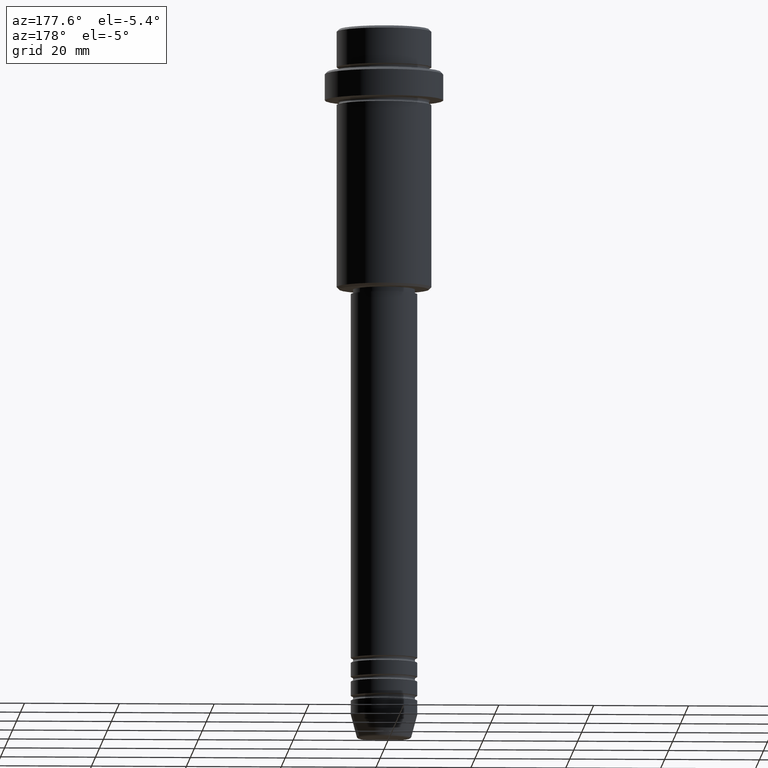
[diagram: clean part render]
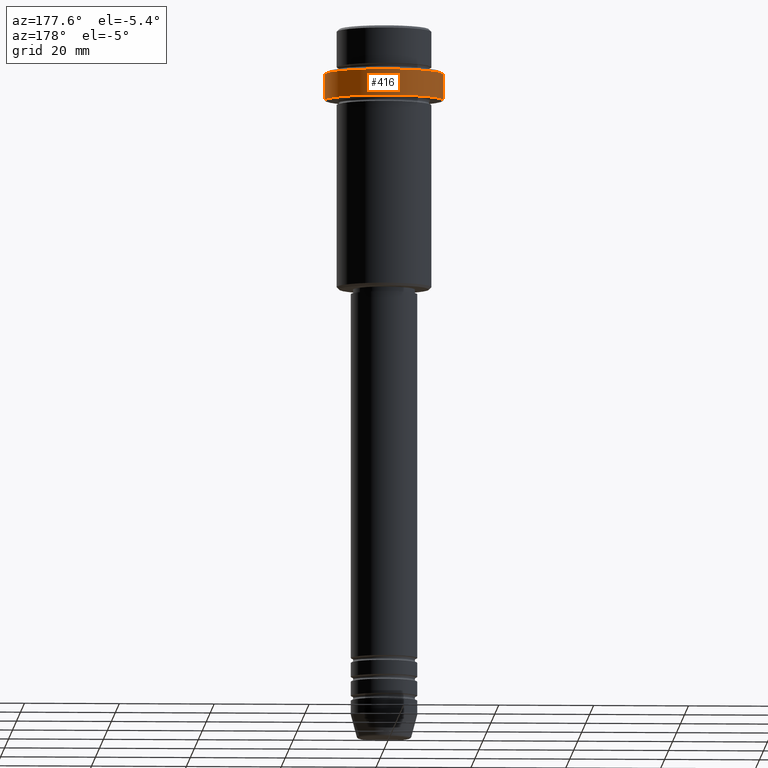
[diagram: same view with one face highlighted and labeled with its STEP entity id]
A machine part, auxiliary view. The second image highlights one B-rep face of the part: STEP entity #416.
In plain terms, the highlighted cylindrical surface (partial cylindrical patch) has radius 12.5 mm, axis along (-0, -0, 1).
Its self-contained STEP definition (entity closure, byte-faithful):
#22 = VERTEX_POINT ( 'NONE', #1342 ) ;
#31 = DIRECTION ( 'NONE',  ( -0.000000000000000000, -0.000000000000000000, 1.000000000000000000 ) ) ;
#34 = DIRECTION ( 'NONE',  ( -0.000000000000000000, -0.000000000000000000, 1.000000000000000000 ) ) ;
#51 = CARTESIAN_POINT ( 'NONE',  ( -12.50000000000000000, 1.530808498934191521E-15, -15.00000000000000178 ) ) ;
#88 = EDGE_CURVE ( 'NONE', #445, #1017, #144, .T. ) ;
#125 = CARTESIAN_POINT ( 'NONE',  ( 0.000000000000000000, 0.000000000000000000, -9.499999999999952038 ) ) ;
#144 = LINE ( 'NONE', #1251, #1368 ) ;
#247 = ORIENTED_EDGE ( 'NONE', *, *, #1079, .T. ) ;
#274 = VECTOR ( 'NONE', #34, 1000.000000000000000 ) ;
#276 = CIRCLE ( 'NONE', #1315, 12.50000000000000000 ) ;
#302 = DIRECTION ( 'NONE',  ( -0.000000000000000000, -0.000000000000000000, 1.000000000000000000 ) ) ;
#357 = DIRECTION ( 'NONE',  ( 1.000000000000000000, 0.000000000000000000, 0.000000000000000000 ) ) ;
#398 = CARTESIAN_POINT ( 'NONE',  ( 0.000000000000000000, 0.000000000000000000, 0.000000000000000000 ) ) ;
#406 = CARTESIAN_POINT ( 'NONE',  ( -12.50000000000000000, 1.530808498934191521E-15, -9.499999999999952038 ) ) ;
#416 = ADVANCED_FACE ( 'NONE', ( #1350 ), #818, .T. ) ;
#440 = CARTESIAN_POINT ( 'NONE',  ( 12.50000000000000000, 0.000000000000000000, 0.000000000000000000 ) ) ;
#445 = VERTEX_POINT ( 'NONE', #51 ) ;
#447 = LINE ( 'NONE', #440, #274 ) ;
#458 = DIRECTION ( 'NONE',  ( 0.000000000000000000, 0.000000000000000000, -1.000000000000000000 ) ) ;
#525 = ORIENTED_EDGE ( 'NONE', *, *, #88, .T. ) ;
#617 = DIRECTION ( 'NONE',  ( 1.000000000000000000, 0.000000000000000000, 0.000000000000000000 ) ) ;
#662 = ORIENTED_EDGE ( 'NONE', *, *, #817, .F. ) ;
#703 = EDGE_CURVE ( 'NONE', #1017, #22, #930, .T. ) ;
#817 = EDGE_CURVE ( 'NONE', #1090, #22, #447, .T. ) ;
#818 = CYLINDRICAL_SURFACE ( 'NONE', #1058, 12.50000000000000000 ) ;
#841 = CARTESIAN_POINT ( 'NONE',  ( 0.000000000000000000, 0.000000000000000000, -15.00000000000000178 ) ) ;
#874 = EDGE_LOOP ( 'NONE', ( #247, #525, #1375, #662 ) ) ;
#930 = CIRCLE ( 'NONE', #1036, 12.50000000000000000 ) ;
#1017 = VERTEX_POINT ( 'NONE', #406 ) ;
#1036 = AXIS2_PLACEMENT_3D ( 'NONE', #125, #458, #357 ) ;
#1058 = AXIS2_PLACEMENT_3D ( 'NONE', #398, #1257, #1262 ) ;
#1079 = EDGE_CURVE ( 'NONE', #1090, #445, #276, .T. ) ;
#1090 = VERTEX_POINT ( 'NONE', #1180 ) ;
#1180 = CARTESIAN_POINT ( 'NONE',  ( 12.50000000000000000, 0.000000000000000000, -15.00000000000000178 ) ) ;
#1251 = CARTESIAN_POINT ( 'NONE',  ( -12.50000000000000000, 1.530808498934191521E-15, 0.000000000000000000 ) ) ;
#1257 = DIRECTION ( 'NONE',  ( -0.000000000000000000, -0.000000000000000000, 1.000000000000000000 ) ) ;
#1262 = DIRECTION ( 'NONE',  ( 1.000000000000000000, 0.000000000000000000, 0.000000000000000000 ) ) ;
#1315 = AXIS2_PLACEMENT_3D ( 'NONE', #841, #302, #617 ) ;
#1342 = CARTESIAN_POINT ( 'NONE',  ( 12.50000000000000000, 0.000000000000000000, -9.499999999999952038 ) ) ;
#1350 = FACE_OUTER_BOUND ( 'NONE', #874, .T. ) ;
#1368 = VECTOR ( 'NONE', #31, 1000.000000000000000 ) ;
#1375 = ORIENTED_EDGE ( 'NONE', *, *, #703, .T. ) ;